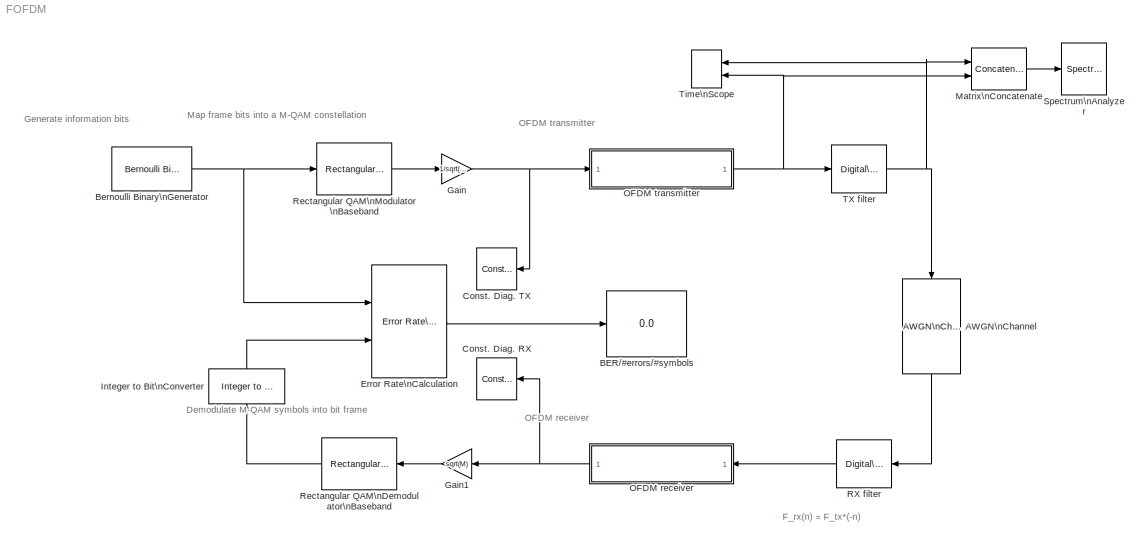
MODEL FOFDM
KIND model
BLOCK [Reference] AWGN\nChannel  REF=commchan3/AWGN\nChannel
  EbNodB = 35
  EsNodB = 10
  InputProcessing = Columns as channels (frame based)
  Ports = [1, 1]
  Ps = 1
  SID = 7
  SNRdB = 10
  SourceBlock = commchan3/AWGN\nChannel
  SourceType = AWGN Channel
  Tsym = sampleTime
  UserData = DataTag1
  UserDataPersistent = on
  bitsPerSym = N*log2(M)
  noiseMode = Signal to noise ratio  (Eb/No)
  seed = 67
  variance = 1
BLOCK [Display] BER//#errors//#symbols
  Decimation = 1
  Ports = [1]
  SID = 193
BLOCK [Reference] Bernoulli Binary\nGenerator  REF=commrandsrc2/Bernoulli Binary\nGenerator
  P = 0.5
  Ports = [0, 1]
  SID = 1
  SourceBlock = commrandsrc2/Bernoulli Binary\nGenerator
  SourceType = Bernoulli Binary Generator
  Ts = 1/(N*log2(M))*sampleTime
  frameBased = on
  orient = off
  outDataType = boolean
  sampPerFrame = N*log2(M)
  seed = 20394875
BLOCK [ConstellationDiagram] Const. Diag. RX
  Ports = [1]
  SID = 192
  ScopeSpecificationString = comm.scopes.ConstellationDiagramBlockCfg('CurrentConfiguration', extmgr.ConfigurationSet(extmgr.Configuration('Core','General UI',true),extmgr.Configuration('Core','Source UI',true),extmgr.Configuration('Sources','WiredSimulink',true),extmgr.Configuration('Visuals','Constellation',true,'AxesProperties',struct('Color',[0 0 0],'XColor',[0.686274509803922 0.686274509803922 0.686274509803922],'YColor'...<+968ch>
BLOCK [ConstellationDiagram] Const. Diag. TX
  Ports = [1]
  SID = 191
  ScopeSpecificationString = comm.scopes.ConstellationDiagramBlockCfg('CurrentConfiguration', extmgr.ConfigurationSet(extmgr.Configuration('Core','General UI',true),extmgr.Configuration('Core','Source UI',true),extmgr.Configuration('Sources','WiredSimulink',true),extmgr.Configuration('Visuals','Constellation',true,'AxesProperties',struct('Color',[0 0 0],'XColor',[0.686274509803922 0.686274509803922 0.686274509803922],'YColor'...<+968ch>
BLOCK [Reference] Error Rate\nCalculation  REF=commsink2/Error Rate\nCalculation
  N = 0
  PMode = Port
  Ports = [2, 1]
  RsMode2 = off
  SID = 194
  SourceBlock = commsink2/Error Rate\nCalculation
  SourceType = Error Rate Calculation
  WsName = ErrorVec
  cp_mode = Entire frame
  maxBits = 1e6
  numErr = 100
  st_delay = 0
  stop = off
  subframe = []
BLOCK [Gain] Gain
  Gain = 1/sqrt(M)
  OutDataTypeStr = Inherit: Inherit via internal rule
  ParamDataTypeStr = Inherit: Inherit via internal rule
  SID = 56
  SaturateOnIntegerOverflow = off
BLOCK [Gain] Gain1
  Gain = sqrt(M)
  OutDataTypeStr = Inherit: Inherit via internal rule
  ParamDataTypeStr = Inherit: Inherit via internal rule
  SID = 164
  SaturateOnIntegerOverflow = off
BLOCK [Reference] Integer to Bit\nConverter  REF=commutil2/Integer to Bit\nConverter
  Ports = [1, 1]
  SID = 205
  SourceBlock = commutil2/Integer to Bit\nConverter
  SourceType = Integer to Bit Converter
  bitOrder = MSB first
  nbits = log2(M)
  outDtype = Inherit via internal rule
  signedInputValues = Unsigned
BLOCK [Concatenate] Matrix\nConcatenate
  ConcatenateDimension = 2
  Mode = Multidimensional array
  Ports = [2, 1]
  SID = 266
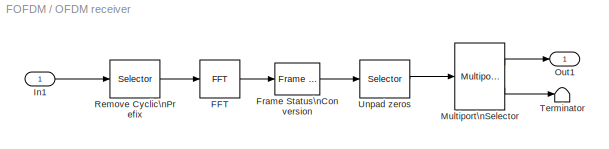
BLOCK [SubSystem] OFDM receiver
  Ports = [1, 1]
  RequestExecContextInheritance = off
  SID = 165
BLOCK [Reference] OFDM receiver/FFT  REF=dspxfrm3/FFT
  BitRevOrder = off
  CompMethod = Table lookup
  FFTImplementation = Auto
  FFTLength = 64
  InheritFFTLength = on
  LockScale = off
  Ports = [1, 1]
  RowConvenienceOn = on
  SID = 198
  SkipNorm = off
  SourceBlock = dspxfrm3/FFT
  SourceType = FFT
  TableOpt = NEW
  TableOptActive = Speed
  WrapInput = on
  accumDataTypeStr = Inherit: Inherit via internal rule
  accumFracLength = 30
  accumLastDataTypeStr = Inherit: Inherit via internal rule
  accumMode = Inherit via internal rule
  accumWordLength = 32
  additionalParams = off
  allowOverrides = on
  firstCoeffDataTypeStr = Inherit: Same word length as input
  firstCoeffFracLength = 15
  firstCoeffLastDataTypeStr = Inherit: Same word length as input
  firstCoeffMode = Same word length as input
  firstCoeffWordLength = 16
  outputDataTypeStr = Inherit: Inherit via internal rule
  outputFracLength = 15
  outputLastDataTypeStr = Inherit: Inherit via internal rule
  outputMax = []
  outputMin = []
  outputMode = Inherit via internal rule
  outputWordLength = 16
  overflowMode = off
  prodOutputDataTypeStr = Inherit: Inherit via internal rule
  prodOutputFracLength = 30
  prodOutputLastDataTypeStr = Inherit: Inherit via internal rule
  prodOutputMode = Inherit via internal rule
  prodOutputWordLength = 32
  roundingMode = Floor
BLOCK [Reference] OFDM receiver/Frame Status\nConversion  REF=dspobslib/Frame Status\nConversion
  Ports = [1, 1]
  SID = 199
  SourceBlock = dspobslib/Frame Status\nConversion
  SourceType = Frame Status Conversion
  growRefPort = off
  outframe = Frame-based
BLOCK [Inport] OFDM receiver/In1
  IconDisplay = Port number
  SID = 166
BLOCK [Reference] OFDM receiver/Multiport\nSelector  REF=dspindex/Multiport\nSelector
  Ports = [1, 2]
  SID = 179
  SourceBlock = dspindex/Multiport\nSelector
  SourceType = Multiport Selector
  idxCellArray = {[1:5 7:19 21:26 28:33 35:47 49:53], [6 20 34 48]}
  idxErrMode = Clip Index
  rowsOrCols = Rows
BLOCK [Outport] OFDM receiver/Out1
  IconDisplay = Port number
  SID = 184
BLOCK [Selector] OFDM receiver/Remove Cyclic\nPrefix
  IndexOptions = Index vector (dialog),Select all
  Indices = [C+1:80],1
  InputPortWidth = 2^(ceil(log2(N)))
  NumberOfDimensions = 2
  OutputSizes = [(-2)],1
  Ports = [1, 1]
  SID = 168
BLOCK [Terminator] OFDM receiver/Terminator
  SID = 201
BLOCK [Selector] OFDM receiver/Unpad zeros
  IndexOptions = Index vector (dialog),Select all
  Indices = [39:64 1:27],1
  InputPortWidth = 2^(ceil(log2(N)))
  NumberOfDimensions = 2
  OutputSizes = [(-2)],1
  Ports = [1, 1]
  SID = 200
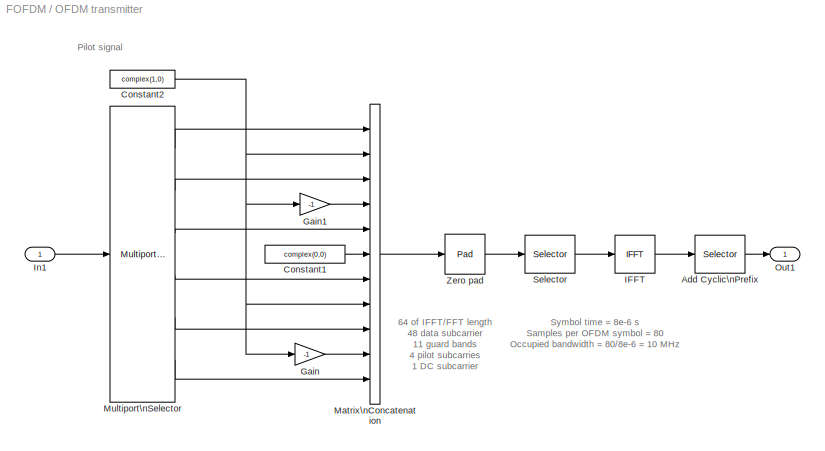
BLOCK [SubSystem] OFDM transmitter
  Ports = [1, 1]
  RequestExecContextInheritance = off
  SID = 67
BLOCK [Selector] OFDM transmitter/Add Cyclic\nPrefix
  IndexOptions = Index vector (dialog),Select all
  Indices = [2^(ceil(log2(N)))-C+1:2^(ceil(log2(N))) 1:2^(ceil(log2(N)))],1
  InputPortWidth = 2^(ceil(log2(N)))
  NumberOfDimensions = 2
  OutputSizes = [(-2)],1
  Ports = [1, 1]
  SID = 102
BLOCK [Constant] OFDM transmitter/Constant1
  SID = 131
  SampleTime = sampleTime
  Value = complex(0,0)
BLOCK [Constant] OFDM transmitter/Constant2
  SID = 206
  SampleTime = sampleTime
  Value = complex(1,0)
BLOCK [Gain] OFDM transmitter/Gain
  Gain = -1
  OutDataTypeStr = Inherit: Inherit via internal rule
  ParamDataTypeStr = Inherit: Inherit via internal rule
  SID = 134
  SaturateOnIntegerOverflow = off
BLOCK [Gain] OFDM transmitter/Gain1
  Gain = -1
  OutDataTypeStr = Inherit: Inherit via internal rule
  ParamDataTypeStr = Inherit: Inherit via internal rule
  SID = 209
  SaturateOnIntegerOverflow = off
BLOCK [Reference] OFDM transmitter/IFFT  REF=dspxfrm3/IFFT
  BitRevOrder = off
  CompMethod = Table lookup
  FFTImplementation = Auto
  FFTLength = 64
  InheritFFTLength = on
  LockScale = off
  Ports = [1, 1]
  RowConvenienceOn = on
  SID = 100
  SkipNorm = on
  SourceBlock = dspxfrm3/IFFT
  SourceType = IFFT
  TableOpt = NEW
  TableOptActive = Speed
  WrapInput = on
  accumDataTypeStr = Inherit: Inherit via internal rule
  accumFracLength = 30
  accumLastDataTypeStr = Inherit: Inherit via internal rule
  accumMode = Inherit via internal rule
  accumWordLength = 32
  additionalParams = off
  allowOverrides = on
  cs_in = off
  firstCoeffDataTypeStr = Inherit: Same word length as input
  firstCoeffFracLength = 15
  firstCoeffLastDataTypeStr = Inherit: Same word length as input
  firstCoeffMode = Same word length as input
  firstCoeffWordLength = 16
  mode = Complex
  outSamplingMode = Sample based
  outputDataTypeStr = Inherit: Inherit via internal rule
  outputFracLength = 15
  outputLastDataTypeStr = Inherit: Inherit via internal rule
  outputMax = []
  outputMin = []
  outputMode = Inherit via internal rule
  outputWordLength = 16
  overflowMode = off
  prodOutputDataTypeStr = Inherit: Inherit via internal rule
  prodOutputFracLength = 30
  prodOutputLastDataTypeStr = Inherit: Inherit via internal rule
  prodOutputMode = Inherit via internal rule
  prodOutputWordLength = 32
  roundingMode = Floor
BLOCK [Inport] OFDM transmitter/In1
  IconDisplay = Port number
  SID = 68
BLOCK [Concatenate] OFDM transmitter/Matrix\nConcatenation
  Mode = Multidimensional array
  NumInputs = 11
  Ports = [11, 1]
  SID = 129
BLOCK [Reference] OFDM transmitter/Multiport\nSelector  REF=dspindex/Multiport\nSelector
  Ports = [1, 6]
  SID = 130
  SourceBlock = dspindex/Multiport\nSelector
  SourceType = Multiport Selector
  idxCellArray = {1:5, 6:18, 19:24, 25:30, 31:43, 44:48}
  idxErrMode = Clip Index
  rowsOrCols = Rows
BLOCK [Outport] OFDM transmitter/Out1
  IconDisplay = Port number
  SID = 69
BLOCK [Selector] OFDM transmitter/Selector
  IndexOptions = Index vector (dialog),Select all
  Indices = [27:64 1:26],1
  InputPortWidth = 3
  NumberOfDimensions = 2
  OutputSizes = 1,1
  Ports = [1, 1]
  SID = 137
BLOCK [Reference] OFDM transmitter/Zero pad  REF=dspsigops/Pad
  LockScale = off
  Ports = [1, 1]
  SID = 135
  SourceBlock = dspsigops/Pad
  SourceType = Pad
  accumFracLength = 0
  accumMode = Same as input
  accumWordLength = 0
  dimsToPad = 1
  isVarDimsMode = off
  numOutCols = 1
  numOutRows = 64
  outSize = 1
  outSizeMode = User-specified
  outputFracLength = 0
  outputMode = Same as input
  outputWordLength = 0
  overflowMode = off
  padAlong = Columns
  padBeginning = 0
  padEnd = 0
  padNumOutColsSpecMethod = User-specified
  padNumOutRowsSpecMethod = User-specified
  padSigAt = End
  padVal = 0
  roundingMode = Floor
  spec = Output size
  truncOrWrapMode = Truncate
  trunc_flag = None
  valSrc = Specify via dialog
  wrap_flag = None
BLOCK [Reference] RX filter  REF=dsparch4/Digital\nFilter Design
  Ports = [1, 1]
  SID = 232
  SourceBlock = dsparch4/Digital\nFilter Design
  SourceType = Digital Filter Design
  UserData = DataTag2
  UserDataPersistent = on
  mwdsp_browser_bugfix_var = off
BLOCK [Reference] Rectangular QAM\nDemodulator\nBaseband  REF=commdigbbndam3/Rectangular QAM\nDemodulator\nBaseband
  AvgPow = 1
  Dec = Gray
  DecType = Hard decision
  M = M
  Mapping = [0:15]
  MinDist = 2
  OutType = Integer
  PeakPow = 1
  Ph = 0
  Ports = [1, 1]
  PowType = Min. distance between symbols
  SID = 190
  SourceBlock = commdigbbndam3/Rectangular QAM\nDemodulator\nBaseband
  SourceType = Rectangular QAM Demodulator Baseband
  VarSource = Dialog
  Variance = 1
  denormFactorDTMode = Same word length as input
  denormFactorWordLen = 16
  derotateFactorDTMode = Specify word length
  derotateFactorWordLen = 16
  outDtype1 = Inherit via internal rule
  outDtype2 = Inherit via internal rule
  prodOutDTMode = Inherit via internal rule
  prodOutOverflowMode = Wrap
  prodOutRoundingMode = Floor
  prodOutWordLen = 32
  sumDTMode = Inherit via internal rule
  sumWordLen = 32
BLOCK [Reference] Rectangular QAM\nModulator\nBaseband  REF=commdigbbndam3/Rectangular QAM\nModulator\nBaseband
  AvgPow = 1
  Enc = Gray
  InType = Bit
  M = M
  Mapping = [0:15]
  MinDist = 2
  PeakPow = 1
  Ph = 0
  Ports = [1, 1]
  PowType = Min. distance between symbols
  SID = 54
  SourceBlock = commdigbbndam3/Rectangular QAM\nModulator\nBaseband
  SourceType = Rectangular QAM Modulator Baseband
  outDtype = double
  outFracLen = 15
  outFracLenMode = Best precision
  outUDDataType = sfix(16)
  outWordLen = 16
BLOCK [SpectrumAnalyzer] Spectrum\nAnalyzer
  Ports = [1]
  SID = 107
  ScopeSpecificationString = spbscopes.SpectrumAnalyzerBlockCfg('CurrentConfiguration', extmgr.ConfigurationSet(extmgr.Configuration('Core','General UI',true),extmgr.Configuration('Core','Source UI',true),extmgr.Configuration('Sources','WiredSimulink',true),extmgr.Configuration('Sources','Simulink',false),extmgr.Configuration('Sources','SimulinkEvent',false),extmgr.Configuration('Sources','File',false),extmgr.Configuration('S...<+7446ch>
BLOCK [Reference] TX filter  REF=dsparch4/Digital\nFilter Design
  Ports = [1, 1]
  SID = 216
  SourceBlock = dsparch4/Digital\nFilter Design
  SourceType = Digital Filter Design
  UserData = DataTag3
  UserDataPersistent = on
  mwdsp_browser_bugfix_var = off
BLOCK [TimeScope] Time\nScope
  DefaultConfigurationName = spbscopes.TimeScopeBlockCfg
  NumInputPorts = 2
  Ports = [2]
  SID = 264
  ScopeSpecificationString = spbscopes.TimeScopeBlockCfg('CurrentConfiguration', extmgr.ConfigurationSet(extmgr.Configuration('Core','General UI',true,'DisplayFullSourceName',true),extmgr.Configuration('Core','Source UI',true),extmgr.Configuration('Sources','WiredSimulink',true),extmgr.Configuration('Visuals','Time Domain',true,'DisplayLayoutDimensions',[2 1],'DisplayPropertyDefaults',struct('MinYLimReal','-0.193544','MaxYLim...<+2567ch>
  UserDataPersistent = on
ANNOTATION (root): Demodulate M-QAM symbols into bit frame
ANNOTATION (root): F_rx(n) = F_tx*(-n)
ANNOTATION (root): Generate information bits
ANNOTATION (root): Map frame bits into a M-QAM constellation
ANNOTATION (root): OFDM receiver
ANNOTATION (root): OFDM transmitter
ANNOTATION OFDM transmitter: 64 of IFFT/FFT length\n48 data subcarrier\n11 guard bands\n4 pilot subcarries\n1 DC subcarrier
ANNOTATION OFDM transmitter: Pilot signal
ANNOTATION OFDM transmitter: Symbol time = 8e-6 s\nSamples per OFDM symbol = 80\nOccupied bandwidth = 80/8e-6 = 10 MHz
LINE AWGN\nChannel:1 -> RX filter:1
NET Bernoulli Binary\nGenerator:1 -> Error Rate\nCalculation:1, Rectangular QAM\nModulator\nBaseband:1
LINE Error Rate\nCalculation:1 -> BER//#errors//#symbols:1
LINE Gain1:1 -> Rectangular QAM\nDemodulator\nBaseband:1
NET Gain:1 -> Const. Diag. TX:1, OFDM transmitter:1
LINE Integer to Bit\nConverter:1 -> Error Rate\nCalculation:2
LINE Matrix\nConcatenate:1 -> Spectrum\nAnalyzer:1
LINE OFDM receiver/FFT:1 -> OFDM receiver/Frame Status\nConversion:1
LINE OFDM receiver/Frame Status\nConversion:1 -> OFDM receiver/Unpad zeros:1
LINE OFDM receiver/In1:1 -> OFDM receiver/Remove Cyclic\nPrefix:1
LINE OFDM receiver/Multiport\nSelector:1 -> OFDM receiver/Out1:1
LINE OFDM receiver/Multiport\nSelector:2 -> OFDM receiver/Terminator:1
LINE OFDM receiver/Remove Cyclic\nPrefix:1 -> OFDM receiver/FFT:1
LINE OFDM receiver/Unpad zeros:1 -> OFDM receiver/Multiport\nSelector:1
NET OFDM receiver:1 -> Const. Diag. RX:1, Gain1:1
LINE OFDM transmitter/Add Cyclic\nPrefix:1 -> OFDM transmitter/Out1:1
LINE OFDM transmitter/Constant1:1 -> OFDM transmitter/Matrix\nConcatenation:6
NET OFDM transmitter/Constant2:1 -> OFDM transmitter/Gain1:1, OFDM transmitter/Gain:1, OFDM transmitter/Matrix\nConcatenation:2, OFDM transmitter/Matrix\nConcatenation:8
LINE OFDM transmitter/Gain1:1 -> OFDM transmitter/Matrix\nConcatenation:4
LINE OFDM transmitter/Gain:1 -> OFDM transmitter/Matrix\nConcatenation:10
LINE OFDM transmitter/IFFT:1 -> OFDM transmitter/Add Cyclic\nPrefix:1
LINE OFDM transmitter/In1:1 -> OFDM transmitter/Multiport\nSelector:1
LINE OFDM transmitter/Matrix\nConcatenation:1 -> OFDM transmitter/Zero pad:1
LINE OFDM transmitter/Multiport\nSelector:1 -> OFDM transmitter/Matrix\nConcatenation:1
LINE OFDM transmitter/Multiport\nSelector:2 -> OFDM transmitter/Matrix\nConcatenation:3
LINE OFDM transmitter/Multiport\nSelector:3 -> OFDM transmitter/Matrix\nConcatenation:5
LINE OFDM transmitter/Multiport\nSelector:4 -> OFDM transmitter/Matrix\nConcatenation:7
LINE OFDM transmitter/Multiport\nSelector:5 -> OFDM transmitter/Matrix\nConcatenation:9
LINE OFDM transmitter/Multiport\nSelector:6 -> OFDM transmitter/Matrix\nConcatenation:11
LINE OFDM transmitter/Selector:1 -> OFDM transmitter/IFFT:1
LINE OFDM transmitter/Zero pad:1 -> OFDM transmitter/Selector:1
NET OFDM transmitter:1 -> Matrix\nConcatenate:2, TX filter:1, Time\nScope:2
LINE RX filter:1 -> OFDM receiver:1
LINE Rectangular QAM\nDemodulator\nBaseband:1 -> Integer to Bit\nConverter:1
LINE Rectangular QAM\nModulator\nBaseband:1 -> Gain:1
NET TX filter:1 -> AWGN\nChannel:1, Matrix\nConcatenate:1, Time\nScope:1
note: NET lines group one-source signal fan-out (src -> all destinations, sorted); 1:1 wires keep LINE
